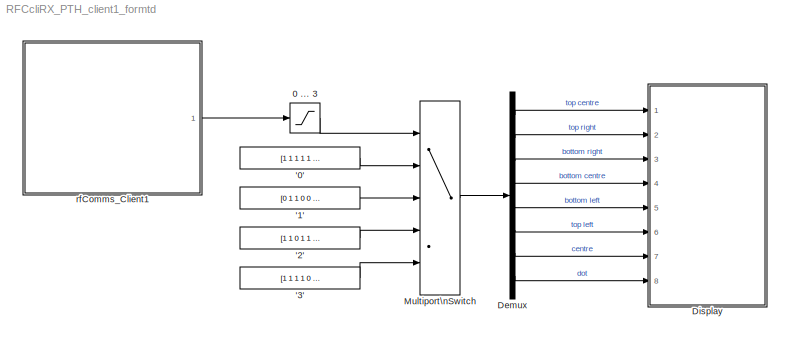
MODEL RFCcliRX_PTH_client1_formtd
KIND model
BLOCK [Constant] '0'
  OutDataTypeStr = double
  SID = 1
  Value = [1 1 1 1 1 1 0 1]
BLOCK [Constant] '1'
  OutDataTypeStr = double
  SID = 2
  Value = [0 1 1 0 0 0 0 0]
BLOCK [Constant] '2'
  OutDataTypeStr = double
  SID = 3
  Value = [1 1 0 1 1 0 1 1]
BLOCK [Constant] '3'
  OutDataTypeStr = double
  SID = 4
  Value = [1 1 1 1 0 0 1 1]
BLOCK [Saturate] 0 ... 3
  InputPortMap = u0
  LowerLimit = 0
  Ports = [1, 1]
  SID = 5
  UpperLimit = 3
BLOCK [Demux] Demux
  Outputs = 8
  Ports = [1, 8]
  SID = 6
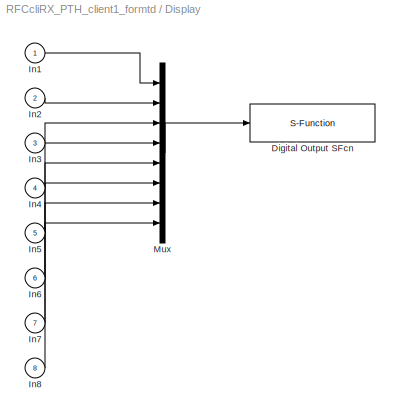
BLOCK [SubSystem] Display
  Ports = [8]
  RequestExecContextInheritance = off
  SID = 7
  ShowPortLabels = none
  Tag = mcTarget_digOut
BLOCK [S-Function] Display/Digital Output SFcn
  EnableBusSupport = off
  FunctionName = digOut_sfcn_9S12
  Parameters = sampletime, port, pins, Von, Voff
  Ports = [1]
  SFcnIsStateOwnerBlock = off
  SFunctionDeploymentMode = off
  SID = 7:9
  Tag = mcTarget_digOut
BLOCK [Inport] Display/In1
  IconDisplay = Port number
  SID = 7:1
BLOCK [Inport] Display/In2
  IconDisplay = Port number
  Port = 2
  SID = 7:2
BLOCK [Inport] Display/In3
  IconDisplay = Port number
  Port = 3
  SID = 7:3
BLOCK [Inport] Display/In4
  IconDisplay = Port number
  Port = 4
  SID = 7:4
BLOCK [Inport] Display/In5
  IconDisplay = Port number
  Port = 5
  SID = 7:5
BLOCK [Inport] Display/In6
  IconDisplay = Port number
  Port = 6
  SID = 7:6
BLOCK [Inport] Display/In7
  IconDisplay = Port number
  Port = 7
  SID = 7:7
BLOCK [Inport] Display/In8
  IconDisplay = Port number
  Port = 8
  SID = 7:8
BLOCK [Mux] Display/Mux
  DisplayOption = bar
  Inputs = 8
  Ports = [8, 1]
  SID = 7:10
BLOCK [MultiPortSwitch] Multiport\nSwitch
  DataPortOrder = Zero-based contiguous
  InputSameDT = off
  Inputs = 4
  Ports = [5, 1]
  SID = 8
  zeroidx = on
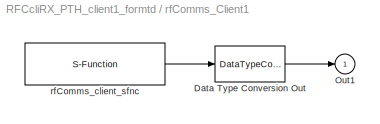
BLOCK [SubSystem] rfComms_Client1
  Ports = [0, 1]
  RequestExecContextInheritance = off
  SID = 10
  ShowPortLabels = none
  Tag = mcTarget_rfCommsCli
BLOCK [DataTypeConversion] rfComms_Client1/Data Type Conversion Out
  OutDataTypeStr = double
  SID = 10:11
BLOCK [Outport] rfComms_Client1/Out1
  IconDisplay = Port number
  SID = 10:13
BLOCK [S-Function] rfComms_Client1/rfComms_client_sfnc
  EnableBusSupport = off
  FunctionName = rfComms_client
  Parameters = sampletime, RXTXmode, channel, buf_size, data_type
  Ports = [0, 1]
  SFcnIsStateOwnerBlock = off
  SFunctionDeploymentMode = off
  SID = 10:12
  Tag = mcTarget_rfCommsCli
LINE '0':1 -> Multiport\nSwitch:2
LINE '1':1 -> Multiport\nSwitch:3
LINE '2':1 -> Multiport\nSwitch:4
LINE '3':1 -> Multiport\nSwitch:5
LINE 0 ... 3:1 -> Multiport\nSwitch:1
LINE Demux:1 -> Display:1
LINE Demux:2 -> Display:2
LINE Demux:3 -> Display:3
LINE Demux:4 -> Display:4
LINE Demux:5 -> Display:5
LINE Demux:6 -> Display:6
LINE Demux:7 -> Display:7
LINE Demux:8 -> Display:8
LINE Display/In1:1 -> Display/Mux:1
LINE Display/In2:1 -> Display/Mux:2
LINE Display/In3:1 -> Display/Mux:3
LINE Display/In4:1 -> Display/Mux:4
LINE Display/In5:1 -> Display/Mux:5
LINE Display/In6:1 -> Display/Mux:6
LINE Display/In7:1 -> Display/Mux:7
LINE Display/In8:1 -> Display/Mux:8
LINE Display/Mux:1 -> Display/Digital Output SFcn:1
LINE Multiport\nSwitch:1 -> Demux:1
LINE rfComms_Client1/Data Type Conversion Out:1 -> rfComms_Client1/Out1:1
LINE rfComms_Client1/rfComms_client_sfnc:1 -> rfComms_Client1/Data Type Conversion Out:1
LINE rfComms_Client1:1 -> 0 ... 3:1
